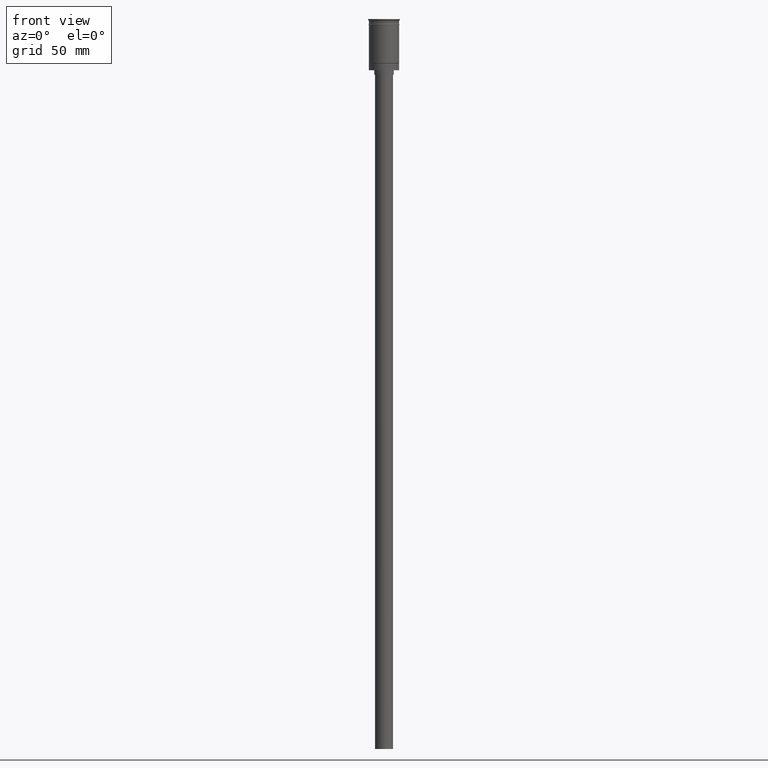
[diagram: clean part render]
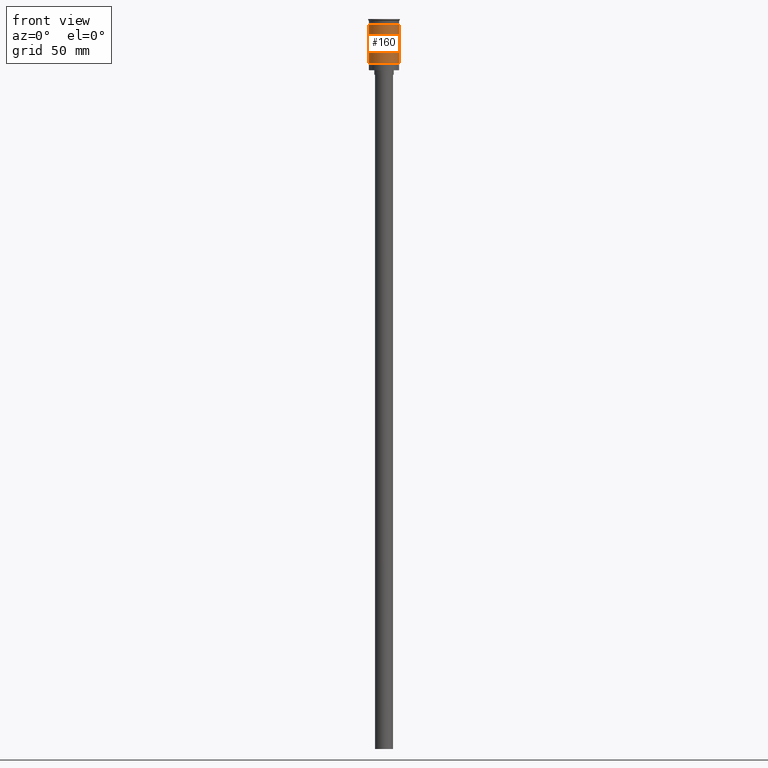
[diagram: same view with one face highlighted and labeled with its STEP entity id]
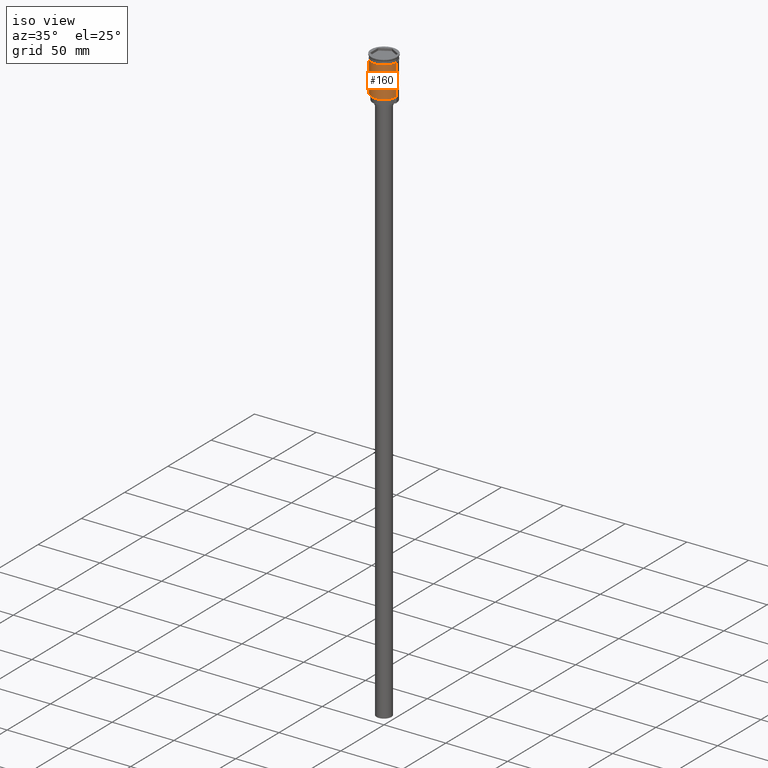
[diagram: same view with one face highlighted and labeled with its STEP entity id]
A machine part, front view. The second image highlights one B-rep face of the part: STEP entity #160.
A second angle (iso view) of the same face is appended — the face is thin or edge-on in the first view.
In plain terms, the highlighted cylindrical surface (edge-blend (fillet) strip) has radius 10 mm, axis along (-0, -0, 1).
Its self-contained STEP definition (entity closure, byte-faithful):
#36 = ORIENTED_EDGE ( 'NONE', *, *, #1080, .F. ) ;
#46 = ORIENTED_EDGE ( 'NONE', *, *, #494, .F. ) ;
#58 = VERTEX_POINT ( 'NONE', #857 ) ;
#151 = DIRECTION ( 'NONE',  ( -0.000000000000000000, -0.000000000000000000, 1.000000000000000000 ) ) ;
#156 = DIRECTION ( 'NONE',  ( -0.000000000000000000, -0.000000000000000000, 1.000000000000000000 ) ) ;
#160 = ADVANCED_FACE ( 'NONE', ( #1115 ), #1451, .T. ) ;
#172 = ORIENTED_EDGE ( 'NONE', *, *, #1561, .T. ) ;
#210 = CIRCLE ( 'NONE', #639, 9.999999999999994671 ) ;
#231 = ORIENTED_EDGE ( 'NONE', *, *, #969, .T. ) ;
#252 = CARTESIAN_POINT ( 'NONE',  ( 9.999999999999994671, 0.000000000000000000, 0.000000000000000000 ) ) ;
#328 = DIRECTION ( 'NONE',  ( -0.000000000000000000, -0.000000000000000000, 1.000000000000000000 ) ) ;
#471 = CARTESIAN_POINT ( 'NONE',  ( 0.000000000000000000, 0.000000000000000000, -29.30000000000000071 ) ) ;
#494 = EDGE_CURVE ( 'NONE', #58, #835, #1508, .T. ) ;
#497 = DIRECTION ( 'NONE',  ( -1.000000000000000000, 0.000000000000000000, 0.000000000000000000 ) ) ;
#629 = CARTESIAN_POINT ( 'NONE',  ( 9.999999999999994671, 1.224646799147352665E-15, -29.30000000000000071 ) ) ;
#639 = AXIS2_PLACEMENT_3D ( 'NONE', #471, #1452, #497 ) ;
#665 = AXIS2_PLACEMENT_3D ( 'NONE', #1107, #1597, #987 ) ;
#700 = VERTEX_POINT ( 'NONE', #1174 ) ;
#730 = CARTESIAN_POINT ( 'NONE',  ( 0.000000000000000000, 0.000000000000000000, -3.999999999999996447 ) ) ;
#737 = LINE ( 'NONE', #1001, #1088 ) ;
#835 = VERTEX_POINT ( 'NONE', #1404 ) ;
#843 = EDGE_LOOP ( 'NONE', ( #36, #231, #172, #46 ) ) ;
#857 = CARTESIAN_POINT ( 'NONE',  ( -10.00000000000000000, 1.224646799147353256E-15, -3.999999999999996447 ) ) ;
#969 = EDGE_CURVE ( 'NONE', #700, #1097, #210, .T. ) ;
#987 = DIRECTION ( 'NONE',  ( 1.000000000000000000, 0.000000000000000000, 0.000000000000000000 ) ) ;
#1001 = CARTESIAN_POINT ( 'NONE',  ( -9.999999999999994671, 1.224646799147352665E-15, 0.000000000000000000 ) ) ;
#1005 = LINE ( 'NONE', #252, #1135 ) ;
#1080 = EDGE_CURVE ( 'NONE', #700, #58, #737, .T. ) ;
#1088 = VECTOR ( 'NONE', #151, 1000.000000000000000 ) ;
#1097 = VERTEX_POINT ( 'NONE', #629 ) ;
#1107 = CARTESIAN_POINT ( 'NONE',  ( 0.000000000000000000, 0.000000000000000000, 0.000000000000000000 ) ) ;
#1115 = FACE_OUTER_BOUND ( 'NONE', #843, .T. ) ;
#1135 = VECTOR ( 'NONE', #156, 1000.000000000000000 ) ;
#1174 = CARTESIAN_POINT ( 'NONE',  ( -9.999999999999991118, 0.000000000000000000, -29.30000000000000071 ) ) ;
#1404 = CARTESIAN_POINT ( 'NONE',  ( 9.999999999999998224, 0.000000000000000000, -3.999999999999996447 ) ) ;
#1451 = CYLINDRICAL_SURFACE ( 'NONE', #665, 9.999999999999994671 ) ;
#1452 = DIRECTION ( 'NONE',  ( -0.000000000000000000, -0.000000000000000000, 1.000000000000000000 ) ) ;
#1508 = CIRCLE ( 'NONE', #1557, 9.999999999999998224 ) ;
#1557 = AXIS2_PLACEMENT_3D ( 'NONE', #730, #328, #1565 ) ;
#1561 = EDGE_CURVE ( 'NONE', #1097, #835, #1005, .T. ) ;
#1565 = DIRECTION ( 'NONE',  ( 1.000000000000000000, 0.000000000000000000, 0.000000000000000000 ) ) ;
#1597 = DIRECTION ( 'NONE',  ( -0.000000000000000000, -0.000000000000000000, 1.000000000000000000 ) ) ;